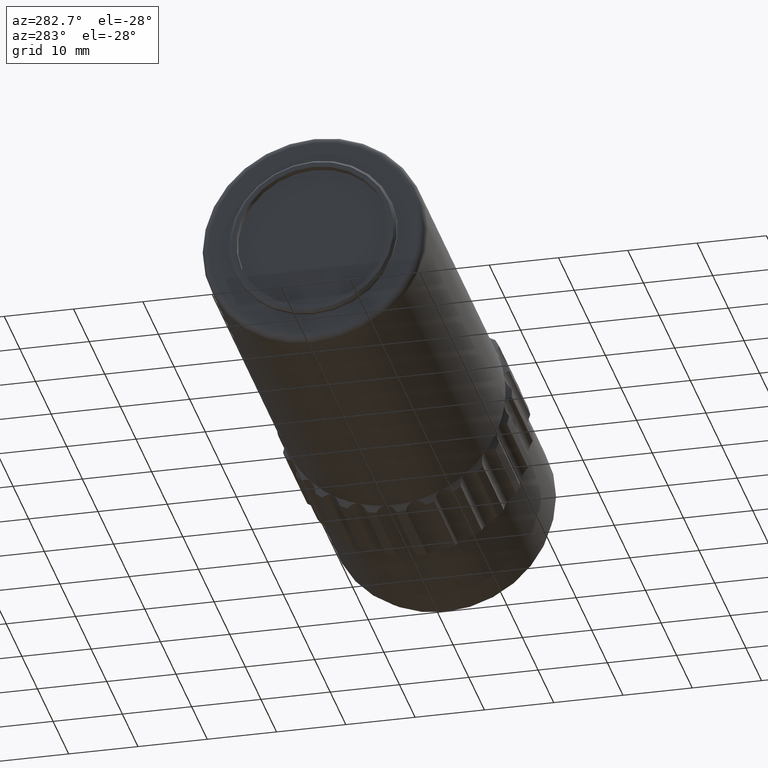
[diagram: clean part render]
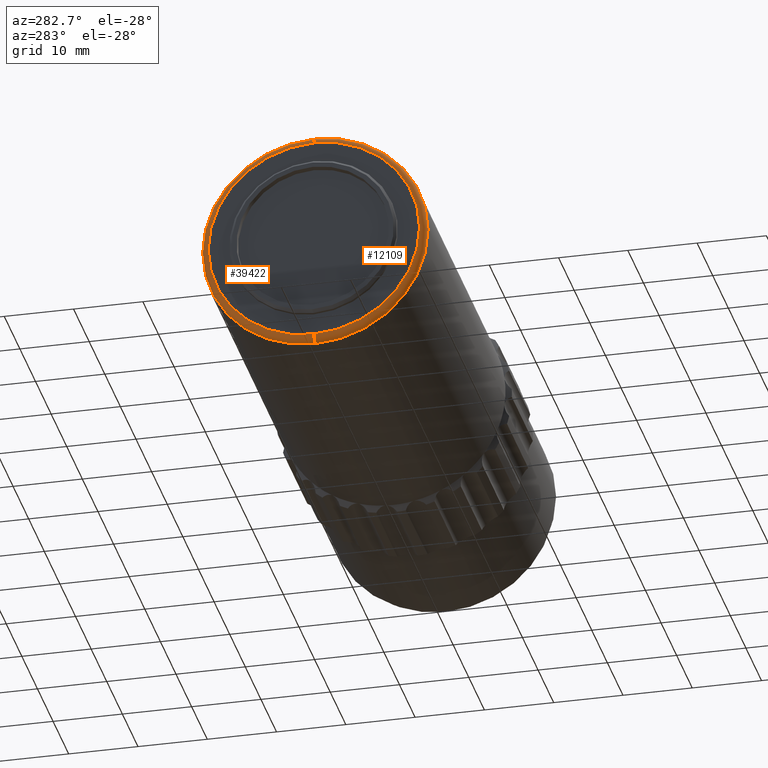
[diagram: same view with one multi-face feature highlighted, each face labeled with its STEP entity id]
A machine part, auxiliary view. The highlighted faces form ONE feature: a constant-radius fillet chain: 2 tangent blend faces with common blend radius 1 mm. The faces share edges in the B-rep.
Their STEP definitions:
[1] entity #12109 (Torus):
#73 = EDGE_CURVE ( 'NONE', #17821, #28611, #31868, .T. ) ;
#1683 = CARTESIAN_POINT ( 'NONE',  ( 1.800000000000009148, 1.990051048614449313E-15, -16.25000000000000000 ) ) ;
#2039 = AXIS2_PLACEMENT_3D ( 'NONE', #13098, #30362, #40745 ) ;
#4738 = CARTESIAN_POINT ( 'NONE',  ( 0.8000000000000090372, 0.000000000000000000, 0.000000000000000000 ) ) ;
#5823 = EDGE_CURVE ( 'NONE', #18983, #28611, #52237, .T. ) ;
#7002 = ORIENTED_EDGE ( 'NONE', *, *, #73, .T. ) ;
#7027 = AXIS2_PLACEMENT_3D ( 'NONE', #32842, #7640, #37669 ) ;
#7640 = DIRECTION ( 'NONE',  ( 1.000000000000000000, 0.000000000000000000, 0.000000000000000000 ) ) ;
#7655 = CARTESIAN_POINT ( 'NONE',  ( 0.8000000000000090372, 0.000000000000000000, -15.25000000000000000 ) ) ;
#12109 = ADVANCED_FACE ( 'NONE', ( #17688 ), #17769, .T. ) ;
#12389 = EDGE_LOOP ( 'NONE', ( #49470, #20329, #7002, #34579 ) ) ;
#13098 = CARTESIAN_POINT ( 'NONE',  ( 1.800000000000009148, 0.000000000000000000, -15.25000000000000000 ) ) ;
#14058 = DIRECTION ( 'NONE',  ( -1.000000000000000000, -0.000000000000000000, -0.000000000000000000 ) ) ;
#15193 = CARTESIAN_POINT ( 'NONE',  ( 0.8000000000000090372, 1.928818708657081739E-15, 15.25000000000000000 ) ) ;
#15769 = CIRCLE ( 'NONE', #39291, 15.25000000000000000 ) ;
#16517 = DIRECTION ( 'NONE',  ( 0.000000000000000000, 1.224646799147353454E-16, 1.000000000000000000 ) ) ;
#17688 = FACE_OUTER_BOUND ( 'NONE', #12389, .T. ) ;
#17769 = TOROIDAL_SURFACE ( 'NONE', #27670, 15.25000000000000000, 1.000000000000000000 ) ;
#17821 = VERTEX_POINT ( 'NONE', #7655 ) ;
#18983 = VERTEX_POINT ( 'NONE', #19222 ) ;
#19131 = VERTEX_POINT ( 'NONE', #15193 ) ;
#19222 = CARTESIAN_POINT ( 'NONE',  ( 1.800000000000009148, 0.000000000000000000, 16.25000000000000000 ) ) ;
#20329 = ORIENTED_EDGE ( 'NONE', *, *, #47403, .F. ) ;
#21368 = DIRECTION ( 'NONE',  ( 0.000000000000000000, 0.000000000000000000, -1.000000000000000000 ) ) ;
#24078 = EDGE_CURVE ( 'NONE', #19131, #18983, #38859, .T. ) ;
#27670 = AXIS2_PLACEMENT_3D ( 'NONE', #30135, #55915, #21368 ) ;
#28611 = VERTEX_POINT ( 'NONE', #1683 ) ;
#30135 = CARTESIAN_POINT ( 'NONE',  ( 1.800000000000009148, 0.000000000000000000, 0.000000000000000000 ) ) ;
#30362 = DIRECTION ( 'NONE',  ( 0.000000000000000000, -1.000000000000000000, 0.000000000000000000 ) ) ;
#31324 = DIRECTION ( 'NONE',  ( 0.000000000000000000, 0.000000000000000000, -1.000000000000000000 ) ) ;
#31868 = CIRCLE ( 'NONE', #2039, 1.000000000000000888 ) ;
#32842 = CARTESIAN_POINT ( 'NONE',  ( 1.800000000000009148, 0.000000000000000000, 0.000000000000000000 ) ) ;
#34579 = ORIENTED_EDGE ( 'NONE', *, *, #5823, .F. ) ;
#37669 = DIRECTION ( 'NONE',  ( 0.000000000000000000, 0.000000000000000000, -1.000000000000000000 ) ) ;
#38859 = CIRCLE ( 'NONE', #54204, 1.000000000000000888 ) ;
#39291 = AXIS2_PLACEMENT_3D ( 'NONE', #4738, #14058, #31324 ) ;
#40745 = DIRECTION ( 'NONE',  ( 0.000000000000000000, 0.000000000000000000, -1.000000000000000000 ) ) ;
#47382 = CARTESIAN_POINT ( 'NONE',  ( 1.800000000000009148, 1.867586368699713770E-15, 15.25000000000000000 ) ) ;
#47403 = EDGE_CURVE ( 'NONE', #17821, #19131, #15769, .T. ) ;
#49470 = ORIENTED_EDGE ( 'NONE', *, *, #24078, .F. ) ;
#52237 = CIRCLE ( 'NONE', #7027, 16.25000000000000000 ) ;
#54204 = AXIS2_PLACEMENT_3D ( 'NONE', #47382, #55875, #16517 ) ;
#55875 = DIRECTION ( 'NONE',  ( 0.000000000000000000, 1.000000000000000000, -1.224646799147353207E-16 ) ) ;
#55915 = DIRECTION ( 'NONE',  ( 1.000000000000000000, 0.000000000000000000, 0.000000000000000000 ) ) ;
[2] entity #39422 (Torus):
#73 = EDGE_CURVE ( 'NONE', #17821, #28611, #31868, .T. ) ;
#416 = TOROIDAL_SURFACE ( 'NONE', #46547, 15.25000000000000000, 1.000000000000000000 ) ;
#1683 = CARTESIAN_POINT ( 'NONE',  ( 1.800000000000009148, 1.990051048614449313E-15, -16.25000000000000000 ) ) ;
#2039 = AXIS2_PLACEMENT_3D ( 'NONE', #13098, #30362, #40745 ) ;
#2857 = FACE_OUTER_BOUND ( 'NONE', #11129, .T. ) ;
#5357 = ORIENTED_EDGE ( 'NONE', *, *, #35727, .F. ) ;
#5740 = CARTESIAN_POINT ( 'NONE',  ( 0.8000000000000090372, 0.000000000000000000, 0.000000000000000000 ) ) ;
#7655 = CARTESIAN_POINT ( 'NONE',  ( 0.8000000000000090372, 0.000000000000000000, -15.25000000000000000 ) ) ;
#11129 = EDGE_LOOP ( 'NONE', ( #5357, #18268, #12957, #14804 ) ) ;
#11906 = DIRECTION ( 'NONE',  ( 0.000000000000000000, 0.000000000000000000, -1.000000000000000000 ) ) ;
#12957 = ORIENTED_EDGE ( 'NONE', *, *, #33194, .F. ) ;
#13098 = CARTESIAN_POINT ( 'NONE',  ( 1.800000000000009148, 0.000000000000000000, -15.25000000000000000 ) ) ;
#14804 = ORIENTED_EDGE ( 'NONE', *, *, #73, .F. ) ;
#15193 = CARTESIAN_POINT ( 'NONE',  ( 0.8000000000000090372, 1.928818708657081739E-15, 15.25000000000000000 ) ) ;
#15881 = DIRECTION ( 'NONE',  ( 1.000000000000000000, 0.000000000000000000, 0.000000000000000000 ) ) ;
#16161 = DIRECTION ( 'NONE',  ( 0.000000000000000000, 0.000000000000000000, -1.000000000000000000 ) ) ;
#16517 = DIRECTION ( 'NONE',  ( 0.000000000000000000, 1.224646799147353454E-16, 1.000000000000000000 ) ) ;
#17821 = VERTEX_POINT ( 'NONE', #7655 ) ;
#18268 = ORIENTED_EDGE ( 'NONE', *, *, #24078, .T. ) ;
#18947 = CIRCLE ( 'NONE', #33422, 16.25000000000000000 ) ;
#18983 = VERTEX_POINT ( 'NONE', #19222 ) ;
#19131 = VERTEX_POINT ( 'NONE', #15193 ) ;
#19222 = CARTESIAN_POINT ( 'NONE',  ( 1.800000000000009148, 0.000000000000000000, 16.25000000000000000 ) ) ;
#23005 = DIRECTION ( 'NONE',  ( -1.000000000000000000, -0.000000000000000000, -0.000000000000000000 ) ) ;
#24078 = EDGE_CURVE ( 'NONE', #19131, #18983, #38859, .T. ) ;
#28611 = VERTEX_POINT ( 'NONE', #1683 ) ;
#29431 = DIRECTION ( 'NONE',  ( 1.000000000000000000, 0.000000000000000000, 0.000000000000000000 ) ) ;
#30362 = DIRECTION ( 'NONE',  ( 0.000000000000000000, -1.000000000000000000, 0.000000000000000000 ) ) ;
#31170 = AXIS2_PLACEMENT_3D ( 'NONE', #5740, #23005, #40300 ) ;
#31868 = CIRCLE ( 'NONE', #2039, 1.000000000000000888 ) ;
#32588 = CARTESIAN_POINT ( 'NONE',  ( 1.800000000000009148, 0.000000000000000000, 0.000000000000000000 ) ) ;
#33194 = EDGE_CURVE ( 'NONE', #28611, #18983, #18947, .T. ) ;
#33422 = AXIS2_PLACEMENT_3D ( 'NONE', #37686, #29431, #11906 ) ;
#35727 = EDGE_CURVE ( 'NONE', #19131, #17821, #38422, .T. ) ;
#37686 = CARTESIAN_POINT ( 'NONE',  ( 1.800000000000009148, 0.000000000000000000, 0.000000000000000000 ) ) ;
#38422 = CIRCLE ( 'NONE', #31170, 15.25000000000000000 ) ;
#38859 = CIRCLE ( 'NONE', #54204, 1.000000000000000888 ) ;
#39422 = ADVANCED_FACE ( 'NONE', ( #2857 ), #416, .T. ) ;
#40300 = DIRECTION ( 'NONE',  ( 0.000000000000000000, 0.000000000000000000, -1.000000000000000000 ) ) ;
#40745 = DIRECTION ( 'NONE',  ( 0.000000000000000000, 0.000000000000000000, -1.000000000000000000 ) ) ;
#46547 = AXIS2_PLACEMENT_3D ( 'NONE', #32588, #15881, #16161 ) ;
#47382 = CARTESIAN_POINT ( 'NONE',  ( 1.800000000000009148, 1.867586368699713770E-15, 15.25000000000000000 ) ) ;
#54204 = AXIS2_PLACEMENT_3D ( 'NONE', #47382, #55875, #16517 ) ;
#55875 = DIRECTION ( 'NONE',  ( 0.000000000000000000, 1.000000000000000000, -1.224646799147353207E-16 ) ) ;